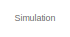
[diagram: root canvas - part 1/2, top left region]
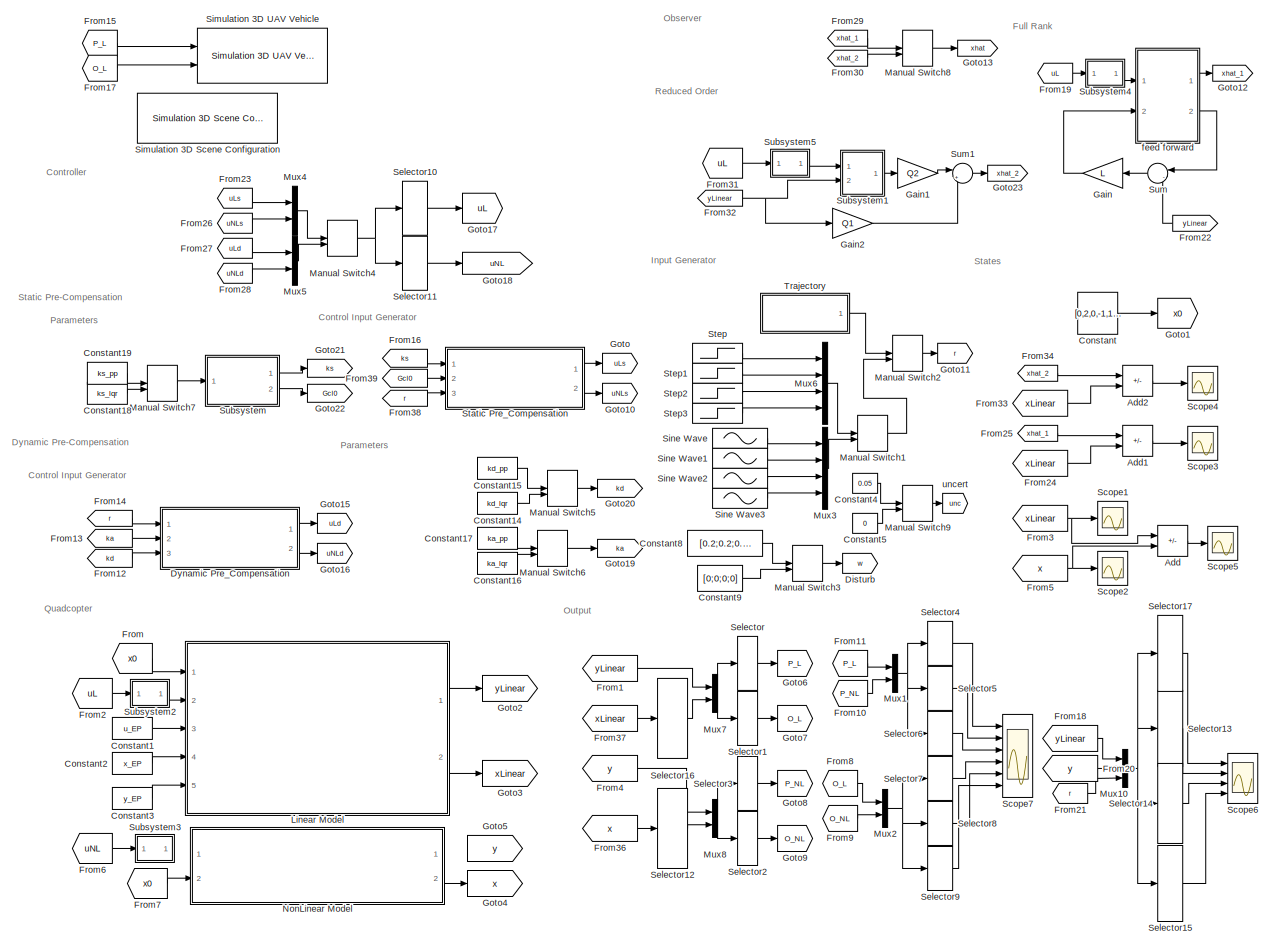
[diagram: root canvas - part 2/2, most of the canvas]
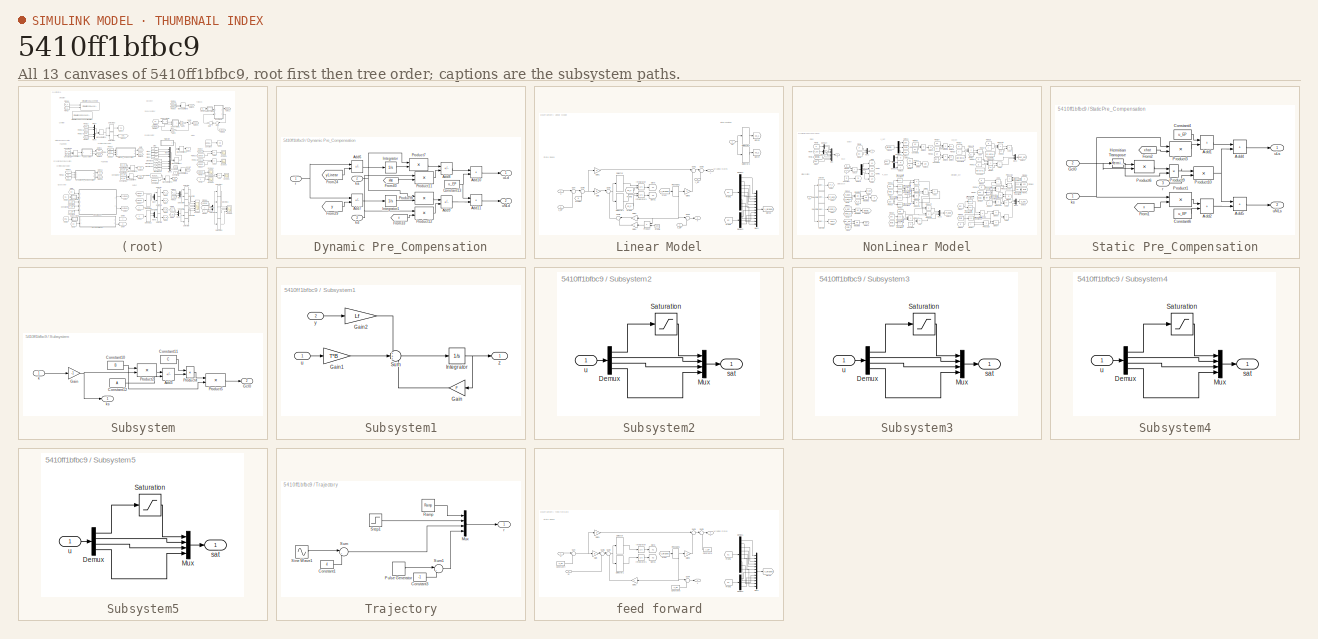
[diagram: thumbnail index - all 13 canvases of the model, root first then tree order]
MODEL slx_5410ff1bfbc9
KIND model
CONFIG AbsTol = auto
CONFIG EnableMultiTasking = off
CONFIG FixedStep = auto
CONFIG MaxStep = 0.001
CONFIG MinStep = auto
CONFIG RelTol = 1e-3
CONFIG SampleTimeConstraint = Unconstrained
CONFIG SolverName = VariableStepAuto
CONFIG StartTime = 0.0
CONFIG StopTime = 30
BLOCK [Sum] Add
  IconShape = rectangular
  Inputs = +-
  Ports = [2, 1]
BLOCK [Sum] Add1
  IconShape = rectangular
  Inputs = +-
  Ports = [2, 1]
BLOCK [Sum] Add2
  IconShape = rectangular
  Inputs = +-
  Ports = [2, 1]
BLOCK [Constant] Constant
  Value = [0,2,0,-1,1,1,0,0,0,0,0,0]
BLOCK [Constant] Constant1
  Value = u_EP
BLOCK [Constant] Constant14
  Value = kd_lqr
  VectorParams1D = off
BLOCK [Constant] Constant15
  Value = kd_pp
  VectorParams1D = off
BLOCK [Constant] Constant16
  Value = ka_lqr
  VectorParams1D = off
BLOCK [Constant] Constant17
  Value = ka_pp
  VectorParams1D = off
BLOCK [Constant] Constant18
  Value = ks_lqr
BLOCK [Constant] Constant19
  Value = ks_pp
BLOCK [Constant] Constant2
  Value = x_EP
BLOCK [Constant] Constant3
  Value = y_EP
BLOCK [Constant] Constant4
  Value = 0.05
BLOCK [Constant] Constant5
  Value = 0
BLOCK [Constant] Constant8
  Value = [0.2;0.2;0.2;0.2]
BLOCK [Constant] Constant9
  Value = [0;0;0;0]
BLOCK [Goto] Disturb
  GotoTag = w
  TagVisibility = global
BLOCK [SubSystem] Dynamic Pre_Compensation
  Ports = [3, 2]
  RequestExecContextInheritance = off
BLOCK [Sum] Dynamic Pre_Compensation/Add10
  IconShape = rectangular
  Ports = [2, 1]
BLOCK [Sum] Dynamic Pre_Compensation/Add11
  IconShape = rectangular
  Ports = [2, 1]
BLOCK [Sum] Dynamic Pre_Compensation/Add6
  IconShape = rectangular
  Inputs = +-
  Ports = [2, 1]
BLOCK [Sum] Dynamic Pre_Compensation/Add7
  IconShape = rectangular
  Inputs = +-
  Ports = [2, 1]
BLOCK [Sum] Dynamic Pre_Compensation/Add8
  IconShape = rectangular
  Inputs = --
  Ports = [2, 1]
BLOCK [Sum] Dynamic Pre_Compensation/Add9
  IconShape = rectangular
  Inputs = --
  Ports = [2, 1]
BLOCK [Constant] Dynamic Pre_Compensation/Constant13
  Value = u_EP
BLOCK [From] Dynamic Pre_Compensation/From24
  GotoTag = yLinear
  TagVisibility = global
BLOCK [From] Dynamic Pre_Compensation/From29
  GotoTag = y
  TagVisibility = global
BLOCK [From] Dynamic Pre_Compensation/From33
  GotoTag = x
  TagVisibility = global
BLOCK [From] Dynamic Pre_Compensation/From40
  GotoTag = xhat
  TagVisibility = global
BLOCK [Integrator] Dynamic Pre_Compensation/Integrator
  Ports = [1, 1]
BLOCK [Integrator] Dynamic Pre_Compensation/Integrator1
  Ports = [1, 1]
BLOCK [Product] Dynamic Pre_Compensation/Product11
  Multiplication = Matrix(*)
  Ports = [2, 1]
BLOCK [Product] Dynamic Pre_Compensation/Product12
  Multiplication = Matrix(*)
  Ports = [2, 1]
BLOCK [Product] Dynamic Pre_Compensation/Product7
  Multiplication = Matrix(*)
  Ports = [2, 1]
BLOCK [Product] Dynamic Pre_Compensation/Product8
  Multiplication = Matrix(*)
  Ports = [2, 1]
BLOCK [Inport] Dynamic Pre_Compensation/ka
  Port = 2
BLOCK [Inport] Dynamic Pre_Compensation/kd
  Port = 3
BLOCK [Inport] Dynamic Pre_Compensation/r
BLOCK [Outport] Dynamic Pre_Compensation/uLd
BLOCK [Outport] Dynamic Pre_Compensation/uNLd
  Port = 2
BLOCK [From] From
  GotoTag = x0
BLOCK [From] From1
  GotoTag = yLinear
  TagVisibility = global
BLOCK [From] From10
  GotoTag = P_NL
BLOCK [From] From11
  GotoTag = P_L
BLOCK [From] From12
  GotoTag = kd
BLOCK [From] From13
  GotoTag = ka
BLOCK [From] From14
  GotoTag = r
BLOCK [From] From15
  GotoTag = P_L
BLOCK [From] From16
  GotoTag = ks
BLOCK [From] From17
  GotoTag = O_L
BLOCK [From] From18
  GotoTag = yLinear
  TagVisibility = global
BLOCK [From] From19
  GotoTag = uL
BLOCK [From] From2
  GotoTag = uL
BLOCK [From] From20
  GotoTag = y
  TagVisibility = global
BLOCK [From] From21
  GotoTag = r
BLOCK [From] From22
  GotoTag = yLinear
  TagVisibility = global
BLOCK [From] From23
  GotoTag = uLs
BLOCK [From] From24
  GotoTag = xLinear
  TagVisibility = global
BLOCK [From] From25
  GotoTag = xhat_1
BLOCK [From] From26
  GotoTag = uNLs
BLOCK [From] From27
  GotoTag = uLd
BLOCK [From] From28
  GotoTag = uNLd
BLOCK [From] From29
  GotoTag = xhat_1
BLOCK [From] From3
  GotoTag = xLinear
  TagVisibility = global
BLOCK [From] From30
  GotoTag = xhat_2
BLOCK [From] From31
  GotoTag = uL
BLOCK [From] From32
  GotoTag = yLinear
  TagVisibility = global
BLOCK [From] From33
  GotoTag = xLinear
  TagVisibility = global
BLOCK [From] From34
  GotoTag = xhat_2
BLOCK [From] From36
  GotoTag = x
  TagVisibility = global
BLOCK [From] From37
  GotoTag = xLinear
  TagVisibility = global
BLOCK [From] From38
  GotoTag = r
BLOCK [From] From39
  GotoTag = Gcl0
  TagVisibility = global
BLOCK [From] From4
  GotoTag = y
  TagVisibility = global
BLOCK [From] From5
  GotoTag = x
  TagVisibility = global
BLOCK [From] From6
  GotoTag = uNL
BLOCK [From] From7
  GotoTag = x0
BLOCK [From] From8
  GotoTag = O_L
BLOCK [From] From9
  GotoTag = O_NL
BLOCK [Gain] Gain
  Gain = L
  Multiplication = Matrix(K*u)
BLOCK [Gain] Gain1
  Gain = Q2
  Multiplication = Matrix(K*u)
BLOCK [Gain] Gain2
  Gain = Q1
  Multiplication = Matrix(K*u)
BLOCK [Goto] Goto
  GotoTag = uLs
BLOCK [Goto] Goto1
  GotoTag = x0
BLOCK [Goto] Goto10
  GotoTag = uNLs
BLOCK [Goto] Goto11
  GotoTag = r
BLOCK [Goto] Goto12
  GotoTag = xhat_1
BLOCK [Goto] Goto13
  GotoTag = xhat
  TagVisibility = global
BLOCK [Goto] Goto15
  GotoTag = uLd
BLOCK [Goto] Goto16
  GotoTag = uNLd
BLOCK [Goto] Goto17
  GotoTag = uL
BLOCK [Goto] Goto18
  GotoTag = uNL
BLOCK [Goto] Goto19
  GotoTag = ka
BLOCK [Goto] Goto2
  GotoTag = yLinear
  TagVisibility = global
BLOCK [Goto] Goto20
  GotoTag = kd
BLOCK [Goto] Goto21
  GotoTag = ks
BLOCK [Goto] Goto22
  GotoTag = Gcl0
  TagVisibility = global
BLOCK [Goto] Goto23
  GotoTag = xhat_2
BLOCK [Goto] Goto3
  GotoTag = xLinear
  TagVisibility = global
BLOCK [Goto] Goto4
  GotoTag = x
  TagVisibility = global
BLOCK [Goto] Goto5
  GotoTag = y
  TagVisibility = global
BLOCK [Goto] Goto6
  GotoTag = P_L
BLOCK [Goto] Goto7
  GotoTag = O_L
BLOCK [Goto] Goto8
  GotoTag = P_NL
BLOCK [Goto] Goto9
  GotoTag = O_NL
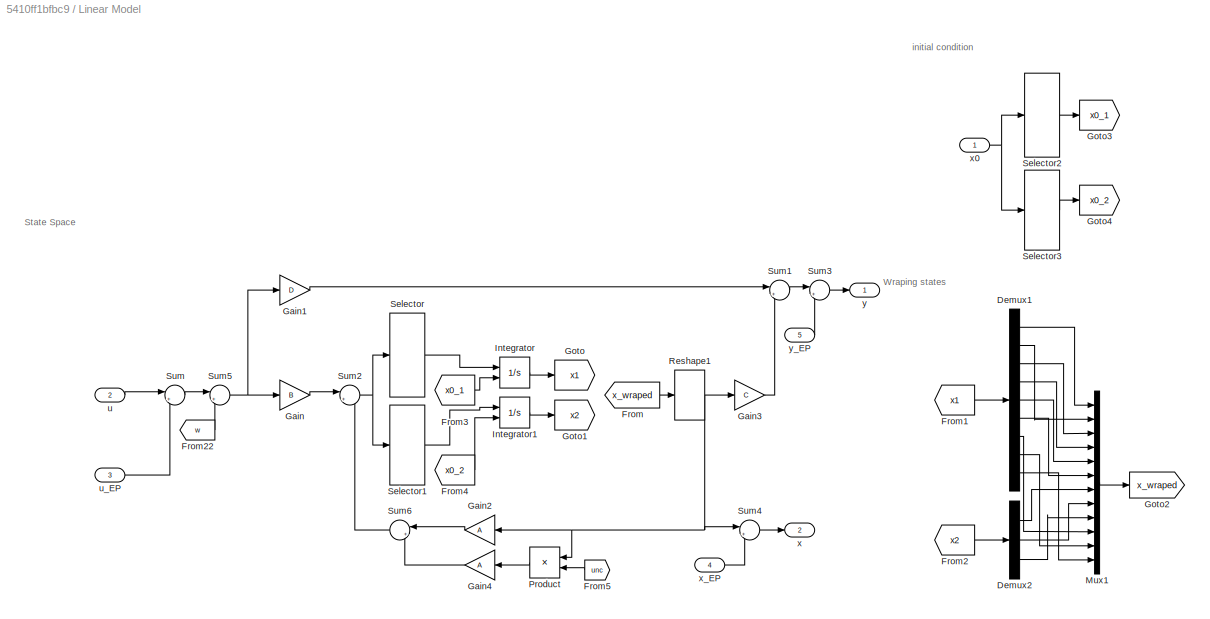
BLOCK [SubSystem] Linear Model
  Ports = [5, 2]
  RequestExecContextInheritance = off
BLOCK [Demux] Linear Model/Demux1
  Outputs = 9
  Ports = [1, 9]
BLOCK [Demux] Linear Model/Demux2
  Outputs = 3
  Ports = [1, 3]
BLOCK [From] Linear Model/From
  GotoTag = x_wraped
BLOCK [From] Linear Model/From1
  GotoTag = x1
BLOCK [From] Linear Model/From2
  GotoTag = x2
BLOCK [From] Linear Model/From22
  GotoTag = w
  TagVisibility = global
BLOCK [From] Linear Model/From3
  GotoTag = x0_1
BLOCK [From] Linear Model/From4
  GotoTag = x0_2
BLOCK [From] Linear Model/From5
  GotoTag = unc
  TagVisibility = global
BLOCK [Gain] Linear Model/Gain
  Gain = B
  Multiplication = Matrix(K*u)
BLOCK [Gain] Linear Model/Gain1
  Gain = D
  Multiplication = Matrix(K*u)
BLOCK [Gain] Linear Model/Gain2
  Gain = A
  Multiplication = Matrix(K*u)
BLOCK [Gain] Linear Model/Gain3
  Gain = C
  Multiplication = Matrix(K*u)
BLOCK [Gain] Linear Model/Gain4
  Gain = A
  Multiplication = Matrix(K*u)
BLOCK [Goto] Linear Model/Goto
  GotoTag = x1
BLOCK [Goto] Linear Model/Goto1
  GotoTag = x2
BLOCK [Goto] Linear Model/Goto2
  GotoTag = x_wraped
BLOCK [Goto] Linear Model/Goto3
  GotoTag = x0_1
BLOCK [Goto] Linear Model/Goto4
  GotoTag = x0_2
BLOCK [Integrator] Linear Model/Integrator
  InitialConditionSource = external
  Ports = [2, 1]
BLOCK [Integrator] Linear Model/Integrator1
  InitialConditionSource = external
  Ports = [2, 1]
  WrapState = on
BLOCK [Mux] Linear Model/Mux1
  DisplayOption = bar
  Inputs = 12
  Ports = [12, 1]
BLOCK [Product] Linear Model/Product
  Ports = [2, 1]
BLOCK [Reshape] Linear Model/Reshape1
  OutputDimensionality = Column vector (2-D)
  Ports = [1, 1]
BLOCK [Selector] Linear Model/Selector
  IndexOptions = Index vector (dialog)
  Indices = [1 2 3 4 5 6 10 11 12]
  InputPortWidth = 12
  OutputSizes = 1
  Ports = [1, 1]
BLOCK [Selector] Linear Model/Selector1
  IndexOptions = Index vector (dialog)
  Indices = [7 8 9]
  InputPortWidth = 12
  OutputSizes = 1
  Ports = [1, 1]
BLOCK [Selector] Linear Model/Selector2
  IndexOptions = Index vector (dialog)
  Indices = [1 2 3 4 5 6 10 11 12]
  InputPortWidth = 12
  OutputSizes = 1
  Ports = [1, 1]
BLOCK [Selector] Linear Model/Selector3
  IndexOptions = Index vector (dialog)
  Indices = [7 8 9]
  InputPortWidth = 12
  OutputSizes = 1
  Ports = [1, 1]
BLOCK [Sum] Linear Model/Sum
  Inputs = |+-
  Ports = [2, 1]
BLOCK [Sum] Linear Model/Sum1
  Inputs = |++
  Ports = [2, 1]
BLOCK [Sum] Linear Model/Sum2
  Inputs = |++
  Ports = [2, 1]
BLOCK [Sum] Linear Model/Sum3
  Inputs = |++
  Ports = [2, 1]
BLOCK [Sum] Linear Model/Sum4
  Inputs = |++
  Ports = [2, 1]
BLOCK [Sum] Linear Model/Sum5
  Inputs = |++
  Ports = [2, 1]
BLOCK [Sum] Linear Model/Sum6
  Inputs = |++
  Ports = [2, 1]
BLOCK [Inport] Linear Model/u
  Port = 2
BLOCK [Inport] Linear Model/u_EP
  Port = 3
BLOCK [Outport] Linear Model/x
  Port = 2
BLOCK [Inport] Linear Model/x0
BLOCK [Inport] Linear Model/x_EP
  Port = 4
BLOCK [Outport] Linear Model/y
BLOCK [Inport] Linear Model/y_EP
  Port = 5
BLOCK [ManualSwitch] Manual Switch1
  CurrentSetting = 0
BLOCK [ManualSwitch] Manual Switch2
BLOCK [ManualSwitch] Manual Switch3
  CurrentSetting = 0
BLOCK [ManualSwitch] Manual Switch4
  CurrentSetting = 0
BLOCK [ManualSwitch] Manual Switch5
  CurrentSetting = 0
BLOCK [ManualSwitch] Manual Switch6
  CurrentSetting = 0
BLOCK [ManualSwitch] Manual Switch7
  CurrentSetting = 0
BLOCK [ManualSwitch] Manual Switch8
BLOCK [ManualSwitch] Manual Switch9
  CurrentSetting = 0
BLOCK [Mux] Mux1
  DisplayOption = bar
  Inputs = 2
  Ports = [2, 1]
BLOCK [Mux] Mux10
  DisplayOption = bar
  Inputs = 3
  Ports = [3, 1]
BLOCK [Mux] Mux2
  DisplayOption = bar
  Inputs = 2
  Ports = [2, 1]
BLOCK [Mux] Mux3
  DisplayOption = bar
  Ports = [4, 1]
BLOCK [Mux] Mux4
  DisplayOption = bar
  Inputs = 2
  Ports = [2, 1]
BLOCK [Mux] Mux5
  DisplayOption = bar
  Inputs = 2
  Ports = [2, 1]
BLOCK [Mux] Mux6
  DisplayOption = bar
  Ports = [4, 1]
BLOCK [Mux] Mux7
  DisplayOption = bar
  Inputs = 2
  Ports = [2, 1]
BLOCK [Mux] Mux8
  DisplayOption = bar
  Inputs = 2
  Ports = [2, 1]
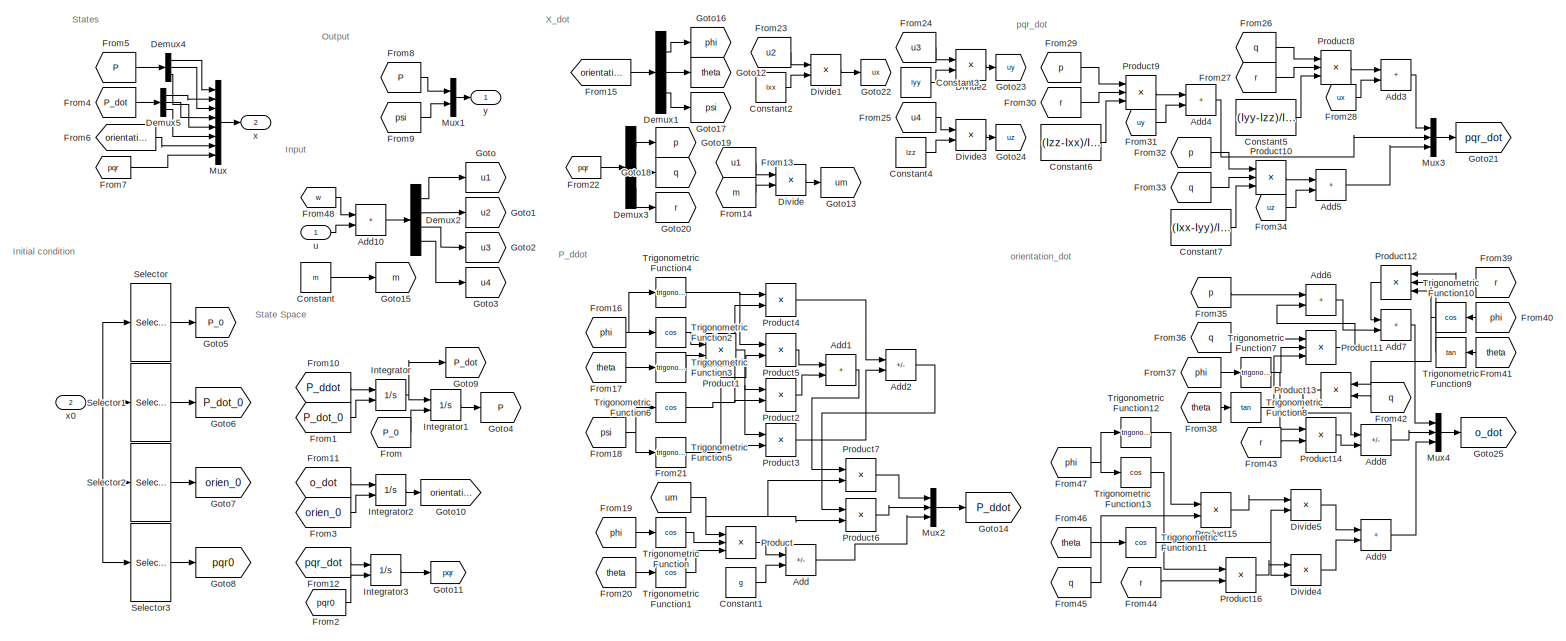
[diagram: NonLinear Model - part 1/1, most of the canvas]
BLOCK [SubSystem] NonLinear Model
  Ports = [2, 2]
  RequestExecContextInheritance = off
BLOCK [Sum] NonLinear Model/Add
  IconShape = rectangular
  Inputs = +-
  Ports = [2, 1]
BLOCK [Sum] NonLinear Model/Add1
  IconShape = rectangular
  Ports = [2, 1]
BLOCK [Sum] NonLinear Model/Add10
  IconShape = rectangular
  Ports = [2, 1]
BLOCK [Sum] NonLinear Model/Add2
  IconShape = rectangular
  Inputs = -+
  Ports = [2, 1]
BLOCK [Sum] NonLinear Model/Add3
  IconShape = rectangular
  Ports = [2, 1]
BLOCK [Sum] NonLinear Model/Add4
  IconShape = rectangular
  Ports = [2, 1]
BLOCK [Sum] NonLinear Model/Add5
  IconShape = rectangular
  Ports = [2, 1]
BLOCK [Sum] NonLinear Model/Add6
  IconShape = rectangular
  Ports = [2, 1]
BLOCK [Sum] NonLinear Model/Add7
  IconShape = rectangular
  Ports = [2, 1]
BLOCK [Sum] NonLinear Model/Add8
  IconShape = rectangular
  Inputs = +-
  Ports = [2, 1]
BLOCK [Sum] NonLinear Model/Add9
  IconShape = rectangular
  Ports = [2, 1]
BLOCK [Constant] NonLinear Model/Constant
  Value = m
BLOCK [Constant] NonLinear Model/Constant1
  Value = g
BLOCK [Constant] NonLinear Model/Constant2
  Value = Ixx
BLOCK [Constant] NonLinear Model/Constant3
  Value = Iyy
BLOCK [Constant] NonLinear Model/Constant4
  Value = Izz
BLOCK [Constant] NonLinear Model/Constant5
  Value = (Iyy-Izz)/Ixx
BLOCK [Constant] NonLinear Model/Constant6
  Value = (Izz-Ixx)/Iyy
BLOCK [Constant] NonLinear Model/Constant7
  Value = (Ixx-Iyy)/Izz
BLOCK [Demux] NonLinear Model/Demux1
  Outputs = 3
  Ports = [1, 3]
BLOCK [Demux] NonLinear Model/Demux2
  Ports = [1, 4]
BLOCK [Demux] NonLinear Model/Demux3
  Outputs = 3
  Ports = [1, 3]
BLOCK [Demux] NonLinear Model/Demux4
  Outputs = 3
  Ports = [1, 3]
BLOCK [Demux] NonLinear Model/Demux5
  NameLocation = left
  Outputs = 3
  Ports = [1, 3]
BLOCK [Product] NonLinear Model/Divide
  Inputs = */
  Ports = [2, 1]
BLOCK [Product] NonLinear Model/Divide1
  Inputs = */
  Ports = [2, 1]
BLOCK [Product] NonLinear Model/Divide2
  Inputs = */
  Ports = [2, 1]
BLOCK [Product] NonLinear Model/Divide3
  Inputs = */
  Ports = [2, 1]
BLOCK [Product] NonLinear Model/Divide4
  Inputs = */
  NameLocation = top
  Ports = [2, 1]
BLOCK [Product] NonLinear Model/Divide5
  Inputs = */
  Ports = [2, 1]
BLOCK [From] NonLinear Model/From
  GotoTag = P_0
BLOCK [From] NonLinear Model/From1
  GotoTag = P_dot_0
BLOCK [From] NonLinear Model/From10
  GotoTag = P_ddot
BLOCK [From] NonLinear Model/From11
  GotoTag = o_dot
BLOCK [From] NonLinear Model/From12
  GotoTag = pqr_dot
BLOCK [From] NonLinear Model/From13
  GotoTag = u1
BLOCK [From] NonLinear Model/From14
  GotoTag = m
BLOCK [From] NonLinear Model/From15
  GotoTag = orientation
BLOCK [From] NonLinear Model/From16
  GotoTag = phi
BLOCK [From] NonLinear Model/From17
  GotoTag = theta
BLOCK [From] NonLinear Model/From18
  GotoTag = psi
BLOCK [From] NonLinear Model/From19
  GotoTag = phi
BLOCK [From] NonLinear Model/From2
  GotoTag = pqr0
BLOCK [From] NonLinear Model/From20
  GotoTag = theta
BLOCK [From] NonLinear Model/From21
  GotoTag = um
BLOCK [From] NonLinear Model/From22
  GotoTag = pqr
BLOCK [From] NonLinear Model/From23
  GotoTag = u2
BLOCK [From] NonLinear Model/From24
  GotoTag = u3
BLOCK [From] NonLinear Model/From25
  GotoTag = u4
BLOCK [From] NonLinear Model/From26
  GotoTag = q
BLOCK [From] NonLinear Model/From27
  GotoTag = r
BLOCK [From] NonLinear Model/From28
  GotoTag = ux
BLOCK [From] NonLinear Model/From29
  GotoTag = p
BLOCK [From] NonLinear Model/From3
  GotoTag = orien_0
BLOCK [From] NonLinear Model/From30
  GotoTag = r
BLOCK [From] NonLinear Model/From31
  GotoTag = uy
BLOCK [From] NonLinear Model/From32
  GotoTag = p
BLOCK [From] NonLinear Model/From33
  GotoTag = q
BLOCK [From] NonLinear Model/From34
  GotoTag = uz
BLOCK [From] NonLinear Model/From35
  GotoTag = p
BLOCK [From] NonLinear Model/From36
  GotoTag = q
BLOCK [From] NonLinear Model/From37
  GotoTag = phi
BLOCK [From] NonLinear Model/From38
  GotoTag = theta
BLOCK [From] NonLinear Model/From39
  GotoTag = r
BLOCK [From] NonLinear Model/From4
  GotoTag = P_dot
BLOCK [From] NonLinear Model/From40
  GotoTag = phi
BLOCK [From] NonLinear Model/From41
  GotoTag = theta
BLOCK [From] NonLinear Model/From42
  GotoTag = q
BLOCK [From] NonLinear Model/From43
  GotoTag = r
BLOCK [From] NonLinear Model/From44
  GotoTag = r
BLOCK [From] NonLinear Model/From45
  GotoTag = q
BLOCK [From] NonLinear Model/From46
  GotoTag = theta
BLOCK [From] NonLinear Model/From47
  GotoTag = phi
BLOCK [From] NonLinear Model/From48
  GotoTag = w
  TagVisibility = global
BLOCK [From] NonLinear Model/From5
  GotoTag = P
BLOCK [From] NonLinear Model/From6
  GotoTag = orientation
BLOCK [From] NonLinear Model/From7
  GotoTag = pqr
BLOCK [From] NonLinear Model/From8
  GotoTag = P
BLOCK [From] NonLinear Model/From9
  GotoTag = psi
BLOCK [Goto] NonLinear Model/Goto
  GotoTag = u1
BLOCK [Goto] NonLinear Model/Goto1
  GotoTag = u2
BLOCK [Goto] NonLinear Model/Goto10
  GotoTag = orientation
BLOCK [Goto] NonLinear Model/Goto11
  GotoTag = pqr
BLOCK [Goto] NonLinear Model/Goto12
  GotoTag = theta
BLOCK [Goto] NonLinear Model/Goto13
  GotoTag = um
BLOCK [Goto] NonLinear Model/Goto14
  GotoTag = P_ddot
BLOCK [Goto] NonLinear Model/Goto15
  GotoTag = m
BLOCK [Goto] NonLinear Model/Goto16
  GotoTag = phi
BLOCK [Goto] NonLinear Model/Goto17
  GotoTag = psi
BLOCK [Goto] NonLinear Model/Goto18
  GotoTag = q
BLOCK [Goto] NonLinear Model/Goto19
  GotoTag = p
BLOCK [Goto] NonLinear Model/Goto2
  GotoTag = u3
BLOCK [Goto] NonLinear Model/Goto20
  GotoTag = r
BLOCK [Goto] NonLinear Model/Goto21
  GotoTag = pqr_dot
BLOCK [Goto] NonLinear Model/Goto22
  GotoTag = ux
BLOCK [Goto] NonLinear Model/Goto23
  GotoTag = uy
BLOCK [Goto] NonLinear Model/Goto24
  GotoTag = uz
BLOCK [Goto] NonLinear Model/Goto25
  GotoTag = o_dot
BLOCK [Goto] NonLinear Model/Goto3
  GotoTag = u4
BLOCK [Goto] NonLinear Model/Goto4
  GotoTag = P
BLOCK [Goto] NonLinear Model/Goto5
  GotoTag = P_0
BLOCK [Goto] NonLinear Model/Goto6
  GotoTag = P_dot_0
BLOCK [Goto] NonLinear Model/Goto7
  GotoTag = orien_0
BLOCK [Goto] NonLinear Model/Goto8
  GotoTag = pqr0
BLOCK [Goto] NonLinear Model/Goto9
  GotoTag = P_dot
BLOCK [Integrator] NonLinear Model/Integrator
  InitialConditionSource = external
  Ports = [2, 1]
BLOCK [Integrator] NonLinear Model/Integrator1
  InitialConditionSource = external
  Ports = [2, 1]
BLOCK [Integrator] NonLinear Model/Integrator2
  InitialConditionSource = external
  Ports = [2, 1]
  WrapState = on
BLOCK [Integrator] NonLinear Model/Integrator3
  InitialConditionSource = external
  Ports = [2, 1]
BLOCK [Mux] NonLinear Model/Mux
  DisplayOption = bar
  Inputs = 8
  Ports = [8, 1]
BLOCK [Mux] NonLinear Model/Mux1
  DisplayOption = bar
  Inputs = 2
  Ports = [2, 1]
BLOCK [Mux] NonLinear Model/Mux2
  DisplayOption = bar
  Inputs = 3
  Ports = [3, 1]
BLOCK [Mux] NonLinear Model/Mux3
  DisplayOption = bar
  Inputs = 3
  Ports = [3, 1]
BLOCK [Mux] NonLinear Model/Mux4
  DisplayOption = bar
  Inputs = 3
  Ports = [3, 1]
BLOCK [Product] NonLinear Model/Product
  Inputs = 3
  Ports = [3, 1]
BLOCK [Product] NonLinear Model/Product1
  Ports = [2, 1]
BLOCK [Product] NonLinear Model/Product10
  Inputs = 3
  Ports = [3, 1]
BLOCK [Product] NonLinear Model/Product11
  Inputs = 3
  Ports = [3, 1]
BLOCK [Product] NonLinear Model/Product12
  Inputs = 3
  Ports = [3, 1]
BLOCK [Product] NonLinear Model/Product13
  Ports = [2, 1]
BLOCK [Product] NonLinear Model/Product14
  Ports = [2, 1]
BLOCK [Product] NonLinear Model/Product15
  Ports = [2, 1]
BLOCK [Product] NonLinear Model/Product16
  Ports = [2, 1]
BLOCK [Product] NonLinear Model/Product2
  Ports = [2, 1]
BLOCK [Product] NonLinear Model/Product3
  Ports = [2, 1]
BLOCK [Product] NonLinear Model/Product4
  Ports = [2, 1]
BLOCK [Product] NonLinear Model/Product5
  Ports = [2, 1]
BLOCK [Product] NonLinear Model/Product6
  Ports = [2, 1]
BLOCK [Product] NonLinear Model/Product7
  Ports = [2, 1]
BLOCK [Product] NonLinear Model/Product8
  Inputs = 3
  Ports = [3, 1]
BLOCK [Product] NonLinear Model/Product9
  Inputs = 3
  Ports = [3, 1]
BLOCK [Selector] NonLinear Model/Selector
  IndexOptions = Index vector (dialog)
  Indices = [1 3 5]
  InputPortWidth = 12
  OutputSizes = 1
  Ports = [1, 1]
BLOCK [Selector] NonLinear Model/Selector1
  IndexOptions = Index vector (dialog)
  Indices = [2 4 6]
  InputPortWidth = 12
  OutputSizes = 1
  Ports = [1, 1]
BLOCK [Selector] NonLinear Model/Selector2
  IndexOptions = Index vector (dialog)
  Indices = [7 8 9]
  InputPortWidth = 12
  OutputSizes = 1
  Ports = [1, 1]
BLOCK [Selector] NonLinear Model/Selector3
  IndexOptions = Index vector (dialog)
  Indices = [10 11 12]
  InputPortWidth = 12
  OutputSizes = 1
  Ports = [1, 1]
BLOCK [Trigonometry] NonLinear Model/Trigonometric Function
  Operator = cos
  Ports = [1, 1]
BLOCK [Trigonometry] NonLinear Model/Trigonometric Function1
  Operator = cos
  Ports = [1, 1]
BLOCK [Trigonometry] NonLinear Model/Trigonometric Function10
  Operator = cos
  Ports = [1, 1]
BLOCK [Trigonometry] NonLinear Model/Trigonometric Function11
  Operator = cos
  Ports = [1, 1]
BLOCK [Trigonometry] NonLinear Model/Trigonometric Function12
  Ports = [1, 1]
BLOCK [Trigonometry] NonLinear Model/Trigonometric Function13
  Operator = cos
  Ports = [1, 1]
BLOCK [Trigonometry] NonLinear Model/Trigonometric Function2
  Operator = cos
  Ports = [1, 1]
BLOCK [Trigonometry] NonLinear Model/Trigonometric Function3
  Ports = [1, 1]
BLOCK [Trigonometry] NonLinear Model/Trigonometric Function4
  Ports = [1, 1]
BLOCK [Trigonometry] NonLinear Model/Trigonometric Function5
  Ports = [1, 1]
BLOCK [Trigonometry] NonLinear Model/Trigonometric Function6
  Operator = cos
  Ports = [1, 1]
BLOCK [Trigonometry] NonLinear Model/Trigonometric Function7
  Ports = [1, 1]
BLOCK [Trigonometry] NonLinear Model/Trigonometric Function8
  Operator = tan
  Ports = [1, 1]
BLOCK [Trigonometry] NonLinear Model/Trigonometric Function9
  Operator = tan
  Ports = [1, 1]
BLOCK [Inport] NonLinear Model/u
BLOCK [Outport] NonLinear Model/x
  Port = 2
BLOCK [Inport] NonLinear Model/x0
  Port = 2
BLOCK [Outport] NonLinear Model/y
BLOCK [Scope] Scope1
  Floating = off
  NumInputPorts = 1
  Ports = [1]
  ScopeSpecificationString = Simulink.scopes.TimeScopeBlockCfg('CurrentConfiguration', extmgr.ConfigurationSet(extmgr.Configuration('Core','General UI',true,'FigureColor',[1 1 1]),extmgr.Configuration('Core','Source UI',true),extmgr.Configuration('Sources','WiredSimulink',true,'DataLoggingVariableName','ScopeData1'),extmgr.Configuration('Visuals','Time Domain',true,'SerializedDisplays',{struct('MinYLimReal','-160.77868','MaxY...<+2943ch>
BLOCK [Scope] Scope2
  Floating = off
  NumInputPorts = 1
  Ports = [1]
  ScopeSpecificationString = Simulink.scopes.TimeScopeBlockCfg('CurrentConfiguration', extmgr.ConfigurationSet(extmgr.Configuration('Core','General UI',true,'FigureColor',[1 1 1]),extmgr.Configuration('Core','Source UI',true),extmgr.Configuration('Sources','WiredSimulink',true,'DataLoggingVariableName','ScopeData2'),extmgr.Configuration('Visuals','Time Domain',true,'SerializedDisplays',{struct('MinYLimReal','-6.16886','MaxYLi...<+2928ch>
BLOCK [Scope] Scope3
  Floating = off
  NumInputPorts = 1
  Ports = [1]
  ScopeSpecificationString = Simulink.scopes.TimeScopeBlockCfg('CurrentConfiguration', extmgr.ConfigurationSet(extmgr.Configuration('Core','General UI',true,'FigureColor',[1 1 1],'DisplayFullSourceName',true),extmgr.Configuration('Core','Source UI',true),extmgr.Configuration('Sources','WiredSimulink',true,'DataLoggingVariableName','ScopeData1'),extmgr.Configuration('Visuals','Time Domain',true,'SerializedDisplays',{struct('Mi...<+3012ch>
BLOCK [Scope] Scope4
  Floating = off
  NumInputPorts = 1
  Ports = [1]
  ScopeSpecificationString = Simulink.scopes.TimeScopeBlockCfg('CurrentConfiguration', extmgr.ConfigurationSet(extmgr.Configuration('Core','General UI',true,'FigureColor',[1 1 1],'DisplayFullSourceName',true),extmgr.Configuration('Core','Source UI',true),extmgr.Configuration('Sources','WiredSimulink',true,'DataLoggingVariableName','ScopeData2'),extmgr.Configuration('Visuals','Time Domain',true,'SerializedDisplays',{struct('Mi...<+3005ch>
BLOCK [Scope] Scope5
  Floating = off
  NumInputPorts = 1
  Ports = [1]
  ScopeSpecificationString = Simulink.scopes.TimeScopeBlockCfg('CurrentConfiguration', extmgr.ConfigurationSet(extmgr.Configuration('Core','General UI',true,'FigureColor',[1 1 1]),extmgr.Configuration('Core','Source UI',true),extmgr.Configuration('Sources','WiredSimulink',true,'DataLoggingVariableName','ScopeData2'),extmgr.Configuration('Visuals','Time Domain',true,'SerializedDisplays',{struct('MinYLimReal','-1183.27927','Max...<+2959ch>
BLOCK [Scope] Scope6
  Floating = off
  NumInputPorts = 4
  Ports = [4]
  ScopeSpecificationString = Simulink.scopes.TimeScopeBlockCfg('CurrentConfiguration', extmgr.ConfigurationSet(extmgr.Configuration('Core','General UI',true,'FigureColor',[1 1 1]),extmgr.Configuration('Core','Source UI',true),extmgr.Configuration('Sources','WiredSimulink',true,'DataLoggingVariableName','ScopeData1'),extmgr.Configuration('Visuals','Time Domain',true,'SerializedDisplays',{struct('MinYLimReal','-14.994','MaxYLim...<+4815ch>
BLOCK [Scope] Scope7
  Floating = off
  NumInputPorts = 6
  Ports = [6]
  ScopeSpecificationString = Simulink.scopes.TimeScopeBlockCfg('CurrentConfiguration', extmgr.ConfigurationSet(extmgr.Configuration('Core','General UI',true,'FigureColor',[1 1 1]),extmgr.Configuration('Core','Source UI',true),extmgr.Configuration('Sources','WiredSimulink',true,'DataLoggingVariableName','ScopeData5'),extmgr.Configuration('Visuals','Time Domain',true,'SerializedDisplays',{struct('MinYLimReal','-13.08424','MaxYL...<+6391ch>
BLOCK [Selector] Selector
  IndexOptions = Index vector (dialog)
  Indices = [1 2 3]
  InputPortWidth = 6
  OutputSizes = 1
  Ports = [1, 1]
BLOCK [Selector] Selector1
  IndexOptions = Index vector (dialog)
  Indices = [4 5 6]
  InputPortWidth = 6
  OutputSizes = 1
  Ports = [1, 1]
BLOCK [Selector] Selector10
  IndexOptions = Index vector (dialog)
  Indices = [1:4]
  InputPortWidth = 8
  OutputSizes = 1
  Ports = [1, 1]
BLOCK [Selector] Selector11
  IndexOptions = Index vector (dialog)
  Indices = [5:8]
  InputPortWidth = 8
  OutputSizes = 1
  Ports = [1, 1]
BLOCK [Selector] Selector12
  IndexOptions = Index vector (dialog)
  Indices = [7 8]
  InputPortWidth = 12
  OutputSizes = 1
  Ports = [1, 1]
BLOCK [Selector] Selector13
  IndexOptions = Index vector (dialog)
  Indices = [2,6,10]
  InputPortWidth = 12
  OutputSizes = 1
  Ports = [1, 1]
BLOCK [Selector] Selector14
  IndexOptions = Index vector (dialog)
  Indices = [3,7,11]
  InputPortWidth = 12
  OutputSizes = 1
  Ports = [1, 1]
BLOCK [Selector] Selector15
  IndexOptions = Index vector (dialog)
  Indices = [4,8,12]
  InputPortWidth = 12
  OutputSizes = 1
  Ports = [1, 1]
BLOCK [Selector] Selector16
  IndexOptions = Index vector (dialog)
  Indices = [7 8]
  InputPortWidth = 12
  OutputSizes = 1
  Ports = [1, 1]
BLOCK [Selector] Selector17
  IndexOptions = Index vector (dialog)
  Indices = [1,5,9]
  InputPortWidth = 12
  OutputSizes = 1
  Ports = [1, 1]
BLOCK [Selector] Selector2
  IndexOptions = Index vector (dialog)
  Indices = [4 5 6]
  InputPortWidth = 6
  OutputSizes = 1
  Ports = [1, 1]
BLOCK [Selector] Selector3
  IndexOptions = Index vector (dialog)
  Indices = [1 2 3]
  InputPortWidth = 6
  OutputSizes = 1
  Ports = [1, 1]
BLOCK [Selector] Selector4
  IndexOptions = Index vector (dialog)
  Indices = [1 4]
  InputPortWidth = 6
  OutputSizes = 1
  Ports = [1, 1]
BLOCK [Selector] Selector5
  IndexOptions = Index vector (dialog)
  Indices = [2 5]
  InputPortWidth = 6
  OutputSizes = 1
  Ports = [1, 1]
BLOCK [Selector] Selector6
  IndexOptions = Index vector (dialog)
  Indices = [3 6]
  InputPortWidth = 6
  OutputSizes = 1
  Ports = [1, 1]
BLOCK [Selector] Selector7
  IndexOptions = Index vector (dialog)
  Indices = [1 4]
  InputPortWidth = 6
  OutputSizes = 1
  Ports = [1, 1]
BLOCK [Selector] Selector8
  IndexOptions = Index vector (dialog)
  Indices = [2 5]
  InputPortWidth = 6
  OutputSizes = 1
  Ports = [1, 1]
BLOCK [Selector] Selector9
  IndexOptions = Index vector (dialog)
  Indices = [3 6]
  InputPortWidth = 6
  OutputSizes = 1
  Ports = [1, 1]
BLOCK [Reference] Simulation 3D Scene Configuration  REF=sim3dlib/Simulation 3D Scene Configuration
  Ports = []
  Priority = 0
  SourceBlock = sim3dlib/Simulation 3D Scene Configuration
  SourceProductBaseCode = AE,DR,UV,VE
  SourceType = Simulation 3D Scene Configuration
BLOCK [Reference] Simulation 3D UAV Vehicle  REF=uavsim3dlib/Simulation 3D UAV Vehicle
  Ports = [2]
  Priority = -1
  SourceBlock = uavsim3dlib/Simulation 3D UAV Vehicle
  SourceProductBaseCode = UV
  SourceType = Simulation 3D UAV Vehicle
BLOCK [Sin] Sine Wave
  Amplitude = 0.5
  Frequency = pi/8
  Phase = pi/4
  Ports = [0, 1]
  SampleTime = 0
BLOCK [Sin] Sine Wave1
  Amplitude = 0.4
  Frequency = pi/8
  Phase = pi/8
  Ports = [0, 1]
  SampleTime = 0
BLOCK [Sin] Sine Wave2
  Amplitude = 1.5
  Frequency = pi/8
  Ports = [0, 1]
  SampleTime = 0
BLOCK [Sin] Sine Wave3
  Amplitude = 0.02
  Frequency = pi/16
  Phase = pi/8
  Ports = [0, 1]
  SampleTime = 0
BLOCK [SubSystem] Static Pre_Compensation
  Ports = [3, 2]
  RequestExecContextInheritance = off
BLOCK [Sum] Static Pre_Compensation/Add1
  IconShape = rectangular
  Ports = [2, 1]
BLOCK [Sum] Static Pre_Compensation/Add2
  IconShape = rectangular
  Ports = [2, 1]
BLOCK [Sum] Static Pre_Compensation/Add4
  IconShape = rectangular
  Ports = [2, 1]
BLOCK [Sum] Static Pre_Compensation/Add5
  IconShape = rectangular
  Ports = [2, 1]
BLOCK [Constant] Static Pre_Compensation/Constant4
  Value = u_EP
BLOCK [Constant] Static Pre_Compensation/Constant6
  Value = u_EP
BLOCK [From] Static Pre_Compensation/From1
  GotoTag = x
  TagVisibility = global
BLOCK [From] Static Pre_Compensation/From2
  GotoTag = xhat
  TagVisibility = global
BLOCK [Inport] Static Pre_Compensation/Gcl0
  Port = 2
BLOCK [Reference] Static Pre_Compensation/Hermitian Transpose  REF=matrix_library/Hermitian Transpose
  Ports = [1, 1]
  SourceBlock = matrix_library/Hermitian Transpose
  SourceProductBaseCode = SL
  SourceType = HermitianTranspose
BLOCK [Product] Static Pre_Compensation/Product1
  Multiplication = Matrix(*)
  Ports = [2, 1]
BLOCK [Product] Static Pre_Compensation/Product10
  Multiplication = Matrix(*)
  Ports = [2, 1]
BLOCK [Product] Static Pre_Compensation/Product3
  Multiplication = Matrix(*)
  Ports = [2, 1]
BLOCK [Product] Static Pre_Compensation/Product6
  Multiplication = Matrix(*)
  Ports = [2, 1]
BLOCK [Product] Static Pre_Compensation/Product9
  Inputs = /*
  Multiplication = Matrix(*)
  Ports = [2, 1]
BLOCK [Inport] Static Pre_Compensation/ks
BLOCK [Inport] Static Pre_Compensation/r
  Port = 3
BLOCK [Outport] Static Pre_Compensation/uLs
BLOCK [Outport] Static Pre_Compensation/uNLs
  Port = 2
BLOCK [Step] Step
  SampleTime = 0
  Time = 0
BLOCK [Step] Step1
  After = 3
  SampleTime = 0
  Time = 0
BLOCK [Step] Step2
  After = 4
  SampleTime = 0
  Time = 0
BLOCK [Step] Step3
  After = -pi/32
  SampleTime = 0
  Time = 0
BLOCK [SubSystem] Subsystem
  Ports = [1, 2]
  RequestExecContextInheritance = off
BLOCK [Sum] Subsystem/Add3
  IconShape = rectangular
  Inputs = --
  Ports = [2, 1]
BLOCK [Constant] Subsystem/Constant10
  Value = B
  VectorParams1D = off
BLOCK [Constant] Subsystem/Constant11
  Value = C
  VectorParams1D = off
BLOCK [Constant] Subsystem/Constant12
  Value = A
  VectorParams1D = off
BLOCK [Gain] Subsystem/Gain
  Gain = -1
BLOCK [Outport] Subsystem/Gcl0
  Port = 2
BLOCK [Product] Subsystem/Product2
  Multiplication = Matrix(*)
  Ports = [2, 1]
BLOCK [Product] Subsystem/Product4
  Inputs = */
  Multiplication = Matrix(*)
  Ports = [2, 1]
BLOCK [Product] Subsystem/Product5
  Multiplication = Matrix(*)
  Ports = [2, 1]
BLOCK [Inport] Subsystem/k
BLOCK [Outport] Subsystem/ks
BLOCK [SubSystem] Subsystem1
  Ports = [2, 1]
  RequestExecContextInheritance = off
BLOCK [Gain] Subsystem1/Gain
  Gain = F
  Multiplication = Matrix(K*u)
BLOCK [Gain] Subsystem1/Gain1
  Gain = T*B
  Multiplication = Matrix(K*u)
BLOCK [Gain] Subsystem1/Gain2
  Gain = Lf
  Multiplication = Matrix(K*u)
BLOCK [Integrator] Subsystem1/Integrator
  Ports = [1, 1]
BLOCK [Sum] Subsystem1/Sum
  Inputs = +++
  Ports = [3, 1]
BLOCK [Inport] Subsystem1/u
BLOCK [Inport] Subsystem1/y
  Port = 2
BLOCK [Outport] Subsystem1/z
BLOCK [SubSystem] Subsystem2
  Ports = [1, 1]
  RequestExecContextInheritance = off
BLOCK [Demux] Subsystem2/Demux
  Ports = [1, 4]
BLOCK [Mux] Subsystem2/Mux
  DisplayOption = bar
  Ports = [4, 1]
BLOCK [Saturate] Subsystem2/Saturation
  LowerLimit = 0
  UpperLimit = 35
BLOCK [Outport] Subsystem2/sat
BLOCK [Inport] Subsystem2/u
BLOCK [SubSystem] Subsystem3
  Ports = [1, 1]
  RequestExecContextInheritance = off
BLOCK [Demux] Subsystem3/Demux
  Ports = [1, 4]
BLOCK [Mux] Subsystem3/Mux
  DisplayOption = bar
  Ports = [4, 1]
BLOCK [Saturate] Subsystem3/Saturation
  LowerLimit = 0
  UpperLimit = 25
BLOCK [Outport] Subsystem3/sat
BLOCK [Inport] Subsystem3/u
BLOCK [SubSystem] Subsystem4
  Ports = [1, 1]
  RequestExecContextInheritance = off
BLOCK [Demux] Subsystem4/Demux
  Ports = [1, 4]
BLOCK [Mux] Subsystem4/Mux
  DisplayOption = bar
  Ports = [4, 1]
BLOCK [Saturate] Subsystem4/Saturation
  LowerLimit = 0
  UpperLimit = 35
BLOCK [Outport] Subsystem4/sat
BLOCK [Inport] Subsystem4/u
BLOCK [SubSystem] Subsystem5
  Ports = [1, 1]
  RequestExecContextInheritance = off
BLOCK [Demux] Subsystem5/Demux
  Ports = [1, 4]
BLOCK [Mux] Subsystem5/Mux
  DisplayOption = bar
  Ports = [4, 1]
BLOCK [Saturate] Subsystem5/Saturation
  LowerLimit = 0
  UpperLimit = 25
BLOCK [Outport] Subsystem5/sat
BLOCK [Inport] Subsystem5/u
BLOCK [Sum] Sum
  Inputs = |-+
  Ports = [2, 1]
BLOCK [Sum] Sum1
  Inputs = |++
  Ports = [2, 1]
BLOCK [SubSystem] Trajectory
  Ports = [0, 1]
  RequestExecContextInheritance = off
BLOCK [Constant] Trajectory/Constant1
  Value = 4
BLOCK [Constant] Trajectory/Constant3
  Value = -1
BLOCK [Mux] Trajectory/Mux
  DisplayOption = bar
  Ports = [4, 1]
BLOCK [DiscretePulseGenerator] Trajectory/Pulse Generator
  Amplitude = 2
  Period = 8
  Ports = [0, 1]
  PulseType = Time based
  PulseWidth = 50
BLOCK [Reference] Trajectory/Ramp  REF=simulink/Sources/Ramp
  Ports = [0, 1]
  SourceBlock = simulink/Sources/Ramp
  SourceProductBaseCode = SL
  SourceType = Ramp
BLOCK [Sin] Trajectory/Sine Wave1
  Amplitude = 2
  Frequency = pi/4
  Ports = [0, 1]
  SampleTime = 0
BLOCK [Step] Trajectory/Step1
  SampleTime = 0
  Time = 4
BLOCK [Sum] Trajectory/Sum
  Inputs = |++
  Ports = [2, 1]
BLOCK [Sum] Trajectory/Sum1
  Inputs = |++
  Ports = [2, 1]
BLOCK [Outport] Trajectory/r
BLOCK [SubSystem] feed forward
  Ports = [2, 2]
  RequestExecContextInheritance = off
BLOCK [Constant] feed forward/Constant4
  Value = u_EP
BLOCK [Constant] feed forward/Constant5
  Value = x_EP
BLOCK [Constant] feed forward/Constant6
  Value = y_EP
BLOCK [Demux] feed forward/Demux1
  Outputs = 9
  Ports = [1, 9]
BLOCK [Demux] feed forward/Demux2
  Outputs = 3
  Ports = [1, 3]
BLOCK [From] feed forward/From
  GotoTag = x_wraped
BLOCK [From] feed forward/From1
  GotoTag = x1
BLOCK [From] feed forward/From2
  GotoTag = x2
BLOCK [Gain] feed forward/Gain
  Gain = B
  Multiplication = Matrix(K*u)
BLOCK [Gain] feed forward/Gain1
  Gain = D
  Multiplication = Matrix(K*u)
BLOCK [Gain] feed forward/Gain2
  Gain = A
  Multiplication = Matrix(K*u)
BLOCK [Gain] feed forward/Gain3
  Gain = C
  Multiplication = Matrix(K*u)
BLOCK [Goto] feed forward/Goto
  GotoTag = x1
BLOCK [Goto] feed forward/Goto1
  GotoTag = x2
BLOCK [Goto] feed forward/Goto2
  GotoTag = x_wraped
BLOCK [Integrator] feed forward/Integrator
  Ports = [1, 1]
BLOCK [Integrator] feed forward/Integrator1
  Ports = [1, 1]
  WrapState = on
BLOCK [Mux] feed forward/Mux1
  DisplayOption = bar
  Inputs = 12
  Ports = [12, 1]
BLOCK [Reshape] feed forward/Reshape1
  OutputDimensionality = Column vector (2-D)
  Ports = [1, 1]
BLOCK [Selector] feed forward/Selector
  IndexOptions = Index vector (dialog)
  Indices = [1 2 3 4 5 6 10 11 12]
  InputPortWidth = 12
  OutputSizes = 1
  Ports = [1, 1]
BLOCK [Selector] feed forward/Selector1
  IndexOptions = Index vector (dialog)
  Indices = [7 8 9]
  InputPortWidth = 12
  OutputSizes = 1
  Ports = [1, 1]
BLOCK [Sum] feed forward/Sum
  Inputs = |+-
  Ports = [2, 1]
BLOCK [Sum] feed forward/Sum1
  Inputs = |++
  Ports = [2, 1]
BLOCK [Sum] feed forward/Sum2
  Inputs = |++
  Ports = [2, 1]
BLOCK [Sum] feed forward/Sum3
  Inputs = |++
  Ports = [2, 1]
BLOCK [Sum] feed forward/Sum4
  Inputs = |++
  Ports = [2, 1]
BLOCK [Sum] feed forward/Sum6
  Inputs = |++
  Ports = [2, 1]
BLOCK [Inport] feed forward/dy
  Port = 2
BLOCK [Inport] feed forward/u
BLOCK [Outport] feed forward/x
BLOCK [Outport] feed forward/y
  Port = 2
BLOCK [Goto] uncert
  GotoTag = unc
  TagVisibility = global
ANNOTATION (root): Control Input Generator
ANNOTATION (root): Controller
ANNOTATION (root): Dynamic Pre-Compensation
ANNOTATION (root): Full Rank
ANNOTATION (root): Input Generator
ANNOTATION (root): Observer
ANNOTATION (root): Output
ANNOTATION (root): Parameters
ANNOTATION (root): Quadcopter
ANNOTATION (root): Reduced Order
ANNOTATION (root): Simulation
ANNOTATION (root): States
ANNOTATION (root): Static Pre-Compensation
ANNOTATION Linear Model: State Space
ANNOTATION Linear Model: Wraping states
ANNOTATION Linear Model: initial condition
ANNOTATION NonLinear Model: Initial condition
ANNOTATION NonLinear Model: Input
ANNOTATION NonLinear Model: Output
ANNOTATION NonLinear Model: P_ddot
ANNOTATION NonLinear Model: State Space
ANNOTATION NonLinear Model: States
ANNOTATION NonLinear Model: X_dot
ANNOTATION NonLinear Model: orientation_dot
ANNOTATION NonLinear Model: pqr_dot
ANNOTATION feed forward: State Space
ANNOTATION feed forward: Wraping states
LINE Add1:1 -> Scope3:1
LINE Add2:1 -> Scope4:1
LINE Add:1 -> Scope5:1
LINE Constant14:1 -> Manual Switch5:2
LINE Constant15:1 -> Manual Switch5:1
LINE Constant16:1 -> Manual Switch6:2
LINE Constant17:1 -> Manual Switch6:1
LINE Constant18:1 -> Manual Switch7:2
LINE Constant19:1 -> Manual Switch7:1
LINE Constant1:1 -> Linear Model:3
LINE Constant2:1 -> Linear Model:4
LINE Constant3:1 -> Linear Model:5
LINE Constant4:1 -> Manual Switch9:1
LINE Constant5:1 -> Manual Switch9:2
LINE Constant8:1 -> Manual Switch3:1
LINE Constant9:1 -> Manual Switch3:2
LINE Constant:1 -> Goto1:1
LINE Dynamic Pre_Compensation/Add10:1 -> Dynamic Pre_Compensation/uLd:1
LINE Dynamic Pre_Compensation/Add11:1 -> Dynamic Pre_Compensation/uNLd:1
LINE Dynamic Pre_Compensation/Add6:1 -> Dynamic Pre_Compensation/Integrator:1
LINE Dynamic Pre_Compensation/Add7:1 -> Dynamic Pre_Compensation/Integrator1:1
LINE Dynamic Pre_Compensation/Add8:1 -> Dynamic Pre_Compensation/Add10:1
LINE Dynamic Pre_Compensation/Add9:1 -> Dynamic Pre_Compensation/Add11:2
NET Dynamic Pre_Compensation/Constant13:1 -> Dynamic Pre_Compensation/Add10:2, Dynamic Pre_Compensation/Add11:1
LINE Dynamic Pre_Compensation/From24:1 -> Dynamic Pre_Compensation/Add6:2
LINE Dynamic Pre_Compensation/From29:1 -> Dynamic Pre_Compensation/Add7:2
LINE Dynamic Pre_Compensation/From33:1 -> Dynamic Pre_Compensation/Product12:2
LINE Dynamic Pre_Compensation/From40:1 -> Dynamic Pre_Compensation/Product11:2
LINE Dynamic Pre_Compensation/Integrator1:1 -> Dynamic Pre_Compensation/Product8:2
LINE Dynamic Pre_Compensation/Integrator:1 -> Dynamic Pre_Compensation/Product7:2
LINE Dynamic Pre_Compensation/Product11:1 -> Dynamic Pre_Compensation/Add8:2
LINE Dynamic Pre_Compensation/Product12:1 -> Dynamic Pre_Compensation/Add9:2
LINE Dynamic Pre_Compensation/Product7:1 -> Dynamic Pre_Compensation/Add8:1
LINE Dynamic Pre_Compensation/Product8:1 -> Dynamic Pre_Compensation/Add9:1
NET Dynamic Pre_Compensation/ka:1 -> Dynamic Pre_Compensation/Product7:1, Dynamic Pre_Compensation/Product8:1
NET Dynamic Pre_Compensation/kd:1 -> Dynamic Pre_Compensation/Product11:1, Dynamic Pre_Compensation/Product12:1
NET Dynamic Pre_Compensation/r:1 -> Dynamic Pre_Compensation/Add6:1, Dynamic Pre_Compensation/Add7:1
LINE Dynamic Pre_Compensation:1 -> Goto15:1
LINE Dynamic Pre_Compensation:2 -> Goto16:1
LINE From10:1 -> Mux1:2
LINE From11:1 -> Mux1:1
LINE From12:1 -> Dynamic Pre_Compensation:3
LINE From13:1 -> Dynamic Pre_Compensation:2
LINE From14:1 -> Dynamic Pre_Compensation:1
LINE From15:1 -> Simulation 3D UAV Vehicle:1
LINE From16:1 -> Static Pre_Compensation:1
LINE From17:1 -> Simulation 3D UAV Vehicle:2
LINE From18:1 -> Mux10:1
LINE From19:1 -> Subsystem4:1
LINE From1:1 -> Mux7:1
LINE From20:1 -> Mux10:2
LINE From21:1 -> Mux10:3
LINE From22:1 -> Sum:2
LINE From23:1 -> Mux4:1
LINE From24:1 -> Add1:2
LINE From25:1 -> Add1:1
LINE From26:1 -> Mux4:2
LINE From27:1 -> Mux5:1
LINE From28:1 -> Mux5:2
LINE From29:1 -> Manual Switch8:1
LINE From2:1 -> Subsystem2:1
LINE From30:1 -> Manual Switch8:2
LINE From31:1 -> Subsystem5:1
NET From32:1 -> Gain2:1, Subsystem1:2
LINE From33:1 -> Add2:2
LINE From34:1 -> Add2:1
LINE From36:1 -> Selector12:1
LINE From37:1 -> Selector16:1
LINE From38:1 -> Static Pre_Compensation:3
LINE From39:1 -> Static Pre_Compensation:2
NET From3:1 -> Add:1, Scope1:1
LINE From4:1 -> Mux8:1
NET From5:1 -> Add:2, Scope2:1
LINE From6:1 -> Subsystem3:1
LINE From7:1 -> NonLinear Model:2
LINE From8:1 -> Mux2:1
LINE From9:1 -> Mux2:2
LINE From:1 -> Linear Model:1
LINE Gain1:1 -> Sum1:1
LINE Gain2:1 -> Sum1:2
LINE Gain:1 -> feed forward:2
LINE Linear Model/Demux1:1 -> Linear Model/Mux1:1
LINE Linear Model/Demux1:2 -> Linear Model/Mux1:2
LINE Linear Model/Demux1:3 -> Linear Model/Mux1:3
LINE Linear Model/Demux1:4 -> Linear Model/Mux1:4
LINE Linear Model/Demux1:5 -> Linear Model/Mux1:5
LINE Linear Model/Demux1:6 -> Linear Model/Mux1:6
LINE Linear Model/Demux1:7 -> Linear Model/Mux1:10
LINE Linear Model/Demux1:8 -> Linear Model/Mux1:11
LINE Linear Model/Demux1:9 -> Linear Model/Mux1:12
LINE Linear Model/Demux2:1 -> Linear Model/Mux1:7
LINE Linear Model/Demux2:2 -> Linear Model/Mux1:8
LINE Linear Model/Demux2:3 -> Linear Model/Mux1:9
LINE Linear Model/From1:1 -> Linear Model/Demux1:1
LINE Linear Model/From22:1 -> Linear Model/Sum5:2
LINE Linear Model/From2:1 -> Linear Model/Demux2:1
LINE Linear Model/From3:1 -> Linear Model/Integrator:2
LINE Linear Model/From4:1 -> Linear Model/Integrator1:2
LINE Linear Model/From5:1 -> Linear Model/Product:2
LINE Linear Model/From:1 -> Linear Model/Reshape1:1
LINE Linear Model/Gain1:1 -> Linear Model/Sum1:1
LINE Linear Model/Gain2:1 -> Linear Model/Sum6:1
LINE Linear Model/Gain3:1 -> Linear Model/Sum1:2
LINE Linear Model/Gain4:1 -> Linear Model/Sum6:2
LINE Linear Model/Gain:1 -> Linear Model/Sum2:1
LINE Linear Model/Integrator1:1 -> Linear Model/Goto1:1
LINE Linear Model/Integrator:1 -> Linear Model/Goto:1
LINE Linear Model/Mux1:1 -> Linear Model/Goto2:1
LINE Linear Model/Product:1 -> Linear Model/Gain4:1
NET Linear Model/Reshape1:1 -> Linear Model/Gain2:1, Linear Model/Gain3:1, Linear Model/Product:1, Linear Model/Sum4:1
LINE Linear Model/Selector1:1 -> Linear Model/Integrator1:1
LINE Linear Model/Selector2:1 -> Linear Model/Goto3:1
LINE Linear Model/Selector3:1 -> Linear Model/Goto4:1
LINE Linear Model/Selector:1 -> Linear Model/Integrator:1
LINE Linear Model/Sum1:1 -> Linear Model/Sum3:1
NET Linear Model/Sum2:1 -> Linear Model/Selector1:1, Linear Model/Selector:1
LINE Linear Model/Sum3:1 -> Linear Model/y:1
LINE Linear Model/Sum4:1 -> Linear Model/x:1
NET Linear Model/Sum5:1 -> Linear Model/Gain1:1, Linear Model/Gain:1
LINE Linear Model/Sum6:1 -> Linear Model/Sum2:2
LINE Linear Model/Sum:1 -> Linear Model/Sum5:1
LINE Linear Model/u:1 -> Linear Model/Sum:1
LINE Linear Model/u_EP:1 -> Linear Model/Sum:2
NET Linear Model/x0:1 -> Linear Model/Selector2:1, Linear Model/Selector3:1
LINE Linear Model/x_EP:1 -> Linear Model/Sum4:2
LINE Linear Model/y_EP:1 -> Linear Model/Sum3:2
LINE Linear Model:1 -> Goto2:1
LINE Linear Model:2 -> Goto3:1
LINE Manual Switch1:1 -> Manual Switch2:2
LINE Manual Switch2:1 -> Goto11:1
LINE Manual Switch3:1 -> Disturb:1
NET Manual Switch4:1 -> Selector10:1, Selector11:1
LINE Manual Switch5:1 -> Goto20:1
LINE Manual Switch6:1 -> Goto19:1
LINE Manual Switch7:1 -> Subsystem:1
LINE Manual Switch8:1 -> Goto13:1
LINE Manual Switch9:1 -> uncert:1
NET Mux10:1 -> Selector13:1, Selector14:1, Selector15:1, Selector17:1
NET Mux1:1 -> Selector4:1, Selector5:1, Selector6:1
NET Mux2:1 -> Selector7:1, Selector8:1, Selector9:1
LINE Mux3:1 -> Manual Switch1:2
LINE Mux4:1 -> Manual Switch4:1
LINE Mux5:1 -> Manual Switch4:2
LINE Mux6:1 -> Manual Switch1:1
NET Mux7:1 -> Selector1:1, Selector:1
NET Mux8:1 -> Selector2:1, Selector3:1
LINE NonLinear Model/Add10:1 -> NonLinear Model/Demux2:1
LINE NonLinear Model/Add1:1 -> NonLinear Model/Product7:1
LINE NonLinear Model/Add2:1 -> NonLinear Model/Product6:1
LINE NonLinear Model/Add3:1 -> NonLinear Model/Mux3:1
LINE NonLinear Model/Add4:1 -> NonLinear Model/Mux3:2
LINE NonLinear Model/Add5:1 -> NonLinear Model/Mux3:3
LINE NonLinear Model/Add6:1 -> NonLinear Model/Add7:2
LINE NonLinear Model/Add7:1 -> NonLinear Model/Mux4:1
LINE NonLinear Model/Add8:1 -> NonLinear Model/Mux4:2
LINE NonLinear Model/Add9:1 -> NonLinear Model/Mux4:3
LINE NonLinear Model/Add:1 -> NonLinear Model/Mux2:3
LINE NonLinear Model/Constant1:1 -> NonLinear Model/Add:2
LINE NonLinear Model/Constant2:1 -> NonLinear Model/Divide1:2
LINE NonLinear Model/Constant3:1 -> NonLinear Model/Divide2:2
LINE NonLinear Model/Constant4:1 -> NonLinear Model/Divide3:2
LINE NonLinear Model/Constant5:1 -> NonLinear Model/Product8:3
LINE NonLinear Model/Constant6:1 -> NonLinear Model/Product9:3
LINE NonLinear Model/Constant7:1 -> NonLinear Model/Product10:3
LINE NonLinear Model/Constant:1 -> NonLinear Model/Goto15:1
LINE NonLinear Model/Demux1:1 -> NonLinear Model/Goto16:1
LINE NonLinear Model/Demux1:2 -> NonLinear Model/Goto12:1
LINE NonLinear Model/Demux1:3 -> NonLinear Model/Goto17:1
LINE NonLinear Model/Demux2:1 -> NonLinear Model/Goto:1
LINE NonLinear Model/Demux2:2 -> NonLinear Model/Goto1:1
LINE NonLinear Model/Demux2:3 -> NonLinear Model/Goto2:1
LINE NonLinear Model/Demux2:4 -> NonLinear Model/Goto3:1
LINE NonLinear Model/Demux3:1 -> NonLinear Model/Goto19:1
LINE NonLinear Model/Demux3:2 -> NonLinear Model/Goto18:1
LINE NonLinear Model/Demux3:3 -> NonLinear Model/Goto20:1
LINE NonLinear Model/Demux4:1 -> NonLinear Model/Mux:1
LINE NonLinear Model/Demux4:2 -> NonLinear Model/Mux:3
LINE NonLinear Model/Demux4:3 -> NonLinear Model/Mux:5
LINE NonLinear Model/Demux5:1 -> NonLinear Model/Mux:2
LINE NonLinear Model/Demux5:2 -> NonLinear Model/Mux:4
LINE NonLinear Model/Demux5:3 -> NonLinear Model/Mux:6
LINE NonLinear Model/Divide1:1 -> NonLinear Model/Goto22:1
LINE NonLinear Model/Divide2:1 -> NonLinear Model/Goto23:1
LINE NonLinear Model/Divide3:1 -> NonLinear Model/Goto24:1
LINE NonLinear Model/Divide4:1 -> NonLinear Model/Add9:2
LINE NonLinear Model/Divide5:1 -> NonLinear Model/Add9:1
LINE NonLinear Model/Divide:1 -> NonLinear Model/Goto13:1
LINE NonLinear Model/From10:1 -> NonLinear Model/Integrator:1
LINE NonLinear Model/From11:1 -> NonLinear Model/Integrator2:1
LINE NonLinear Model/From12:1 -> NonLinear Model/Integrator3:1
LINE NonLinear Model/From13:1 -> NonLinear Model/Divide:1
LINE NonLinear Model/From14:1 -> NonLinear Model/Divide:2
LINE NonLinear Model/From15:1 -> NonLinear Model/Demux1:1
NET NonLinear Model/From16:1 -> NonLinear Model/Trigonometric Function2:1, NonLinear Model/Trigonometric Function4:1
LINE NonLinear Model/From17:1 -> NonLinear Model/Trigonometric Function3:1
NET NonLinear Model/From18:1 -> NonLinear Model/Trigonometric Function5:1, NonLinear Model/Trigonometric Function6:1
LINE NonLinear Model/From19:1 -> NonLinear Model/Trigonometric Function:1
LINE NonLinear Model/From1:1 -> NonLinear Model/Integrator:2
LINE NonLinear Model/From20:1 -> NonLinear Model/Trigonometric Function1:1
NET NonLinear Model/From21:1 -> NonLinear Model/Product6:2, NonLinear Model/Product7:2, NonLinear Model/Product:1
LINE NonLinear Model/From22:1 -> NonLinear Model/Demux3:1
LINE NonLinear Model/From23:1 -> NonLinear Model/Divide1:1
LINE NonLinear Model/From24:1 -> NonLinear Model/Divide2:1
LINE NonLinear Model/From25:1 -> NonLinear Model/Divide3:1
LINE NonLinear Model/From26:1 -> NonLinear Model/Product8:1
LINE NonLinear Model/From27:1 -> NonLinear Model/Product8:2
LINE NonLinear Model/From28:1 -> NonLinear Model/Add3:2
LINE NonLinear Model/From29:1 -> NonLinear Model/Product9:1
LINE NonLinear Model/From2:1 -> NonLinear Model/Integrator3:2
LINE NonLinear Model/From30:1 -> NonLinear Model/Product9:2
LINE NonLinear Model/From31:1 -> NonLinear Model/Add4:2
LINE NonLinear Model/From32:1 -> NonLinear Model/Product10:1
LINE NonLinear Model/From33:1 -> NonLinear Model/Product10:2
LINE NonLinear Model/From34:1 -> NonLinear Model/Add5:2
LINE NonLinear Model/From35:1 -> NonLinear Model/Add6:1
LINE NonLinear Model/From36:1 -> NonLinear Model/Product11:1
LINE NonLinear Model/From37:1 -> NonLinear Model/Trigonometric Function7:1
LINE NonLinear Model/From38:1 -> NonLinear Model/Trigonometric Function8:1
LINE NonLinear Model/From39:1 -> NonLinear Model/Product12:1
LINE NonLinear Model/From3:1 -> NonLinear Model/Integrator2:2
LINE NonLinear Model/From40:1 -> NonLinear Model/Trigonometric Function10:1
LINE NonLinear Model/From41:1 -> NonLinear Model/Trigonometric Function9:1
LINE NonLinear Model/From42:1 -> NonLinear Model/Product13:2
LINE NonLinear Model/From43:1 -> NonLinear Model/Product14:2
LINE NonLinear Model/From44:1 -> NonLinear Model/Product16:2
LINE NonLinear Model/From45:1 -> NonLinear Model/Product15:2
LINE NonLinear Model/From46:1 -> NonLinear Model/Trigonometric Function11:1
NET NonLinear Model/From47:1 -> NonLinear Model/Trigonometric Function12:1, NonLinear Model/Trigonometric Function13:1
LINE NonLinear Model/From48:1 -> NonLinear Model/Add10:1
LINE NonLinear Model/From4:1 -> NonLinear Model/Demux5:1
LINE NonLinear Model/From5:1 -> NonLinear Model/Demux4:1
LINE NonLinear Model/From6:1 -> NonLinear Model/Mux:7
LINE NonLinear Model/From7:1 -> NonLinear Model/Mux:8
LINE NonLinear Model/From8:1 -> NonLinear Model/Mux1:1
LINE NonLinear Model/From9:1 -> NonLinear Model/Mux1:2
LINE NonLinear Model/From:1 -> NonLinear Model/Integrator1:2
LINE NonLinear Model/Integrator1:1 -> NonLinear Model/Goto4:1
LINE NonLinear Model/Integrator2:1 -> NonLinear Model/Goto10:1
LINE NonLinear Model/Integrator3:1 -> NonLinear Model/Goto11:1
NET NonLinear Model/Integrator:1 -> NonLinear Model/Goto9:1, NonLinear Model/Integrator1:1
LINE NonLinear Model/Mux1:1 -> NonLinear Model/y:1
LINE NonLinear Model/Mux2:1 -> NonLinear Model/Goto14:1
LINE NonLinear Model/Mux3:1 -> NonLinear Model/Goto21:1
LINE NonLinear Model/Mux4:1 -> NonLinear Model/Goto25:1
LINE NonLinear Model/Mux:1 -> NonLinear Model/x:1
LINE NonLinear Model/Product10:1 -> NonLinear Model/Add5:1
LINE NonLinear Model/Product11:1 -> NonLinear Model/Add6:2
LINE NonLinear Model/Product12:1 -> NonLinear Model/Add7:1
LINE NonLinear Model/Product13:1 -> NonLinear Model/Add8:1
LINE NonLinear Model/Product14:1 -> NonLinear Model/Add8:2
LINE NonLinear Model/Product15:1 -> NonLinear Model/Divide5:1
LINE NonLinear Model/Product16:1 -> NonLinear Model/Divide4:1
NET NonLinear Model/Product1:1 -> NonLinear Model/Product2:1, NonLinear Model/Product3:1
LINE NonLinear Model/Product2:1 -> NonLinear Model/Add1:2
LINE NonLinear Model/Product3:1 -> NonLinear Model/Add2:2
LINE NonLinear Model/Product4:1 -> NonLinear Model/Add2:1
LINE NonLinear Model/Product5:1 -> NonLinear Model/Add1:1
LINE NonLinear Model/Product6:1 -> NonLinear Model/Mux2:2
LINE NonLinear Model/Product7:1 -> NonLinear Model/Mux2:1
LINE NonLinear Model/Product8:1 -> NonLinear Model/Add3:1
LINE NonLinear Model/Product9:1 -> NonLinear Model/Add4:1
LINE NonLinear Model/Product:1 -> NonLinear Model/Add:1
LINE NonLinear Model/Selector1:1 -> NonLinear Model/Goto6:1
LINE NonLinear Model/Selector2:1 -> NonLinear Model/Goto7:1
LINE NonLinear Model/Selector3:1 -> NonLinear Model/Goto8:1
LINE NonLinear Model/Selector:1 -> NonLinear Model/Goto5:1
NET NonLinear Model/Trigonometric Function10:1 -> NonLinear Model/Product12:2, NonLinear Model/Product13:1
NET NonLinear Model/Trigonometric Function11:1 -> NonLinear Model/Divide4:2, NonLinear Model/Divide5:2
LINE NonLinear Model/Trigonometric Function12:1 -> NonLinear Model/Product15:1
LINE NonLinear Model/Trigonometric Function13:1 -> NonLinear Model/Product16:1
LINE NonLinear Model/Trigonometric Function1:1 -> NonLinear Model/Product:3
LINE NonLinear Model/Trigonometric Function2:1 -> NonLinear Model/Product1:1
LINE NonLinear Model/Trigonometric Function3:1 -> NonLinear Model/Product1:2
NET NonLinear Model/Trigonometric Function4:1 -> NonLinear Model/Product4:1, NonLinear Model/Product5:1
NET NonLinear Model/Trigonometric Function5:1 -> NonLinear Model/Product3:2, NonLinear Model/Product5:2
NET NonLinear Model/Trigonometric Function6:1 -> NonLinear Model/Product2:2, NonLinear Model/Product4:2
NET NonLinear Model/Trigonometric Function7:1 -> NonLinear Model/Product11:2, NonLinear Model/Product14:1
LINE NonLinear Model/Trigonometric Function8:1 -> NonLinear Model/Product11:3
LINE NonLinear Model/Trigonometric Function9:1 -> NonLinear Model/Product12:3
LINE NonLinear Model/Trigonometric Function:1 -> NonLinear Model/Product:2
LINE NonLinear Model/u:1 -> NonLinear Model/Add10:2
NET NonLinear Model/x0:1 -> NonLinear Model/Selector1:1, NonLinear Model/Selector2:1, NonLinear Model/Selector3:1, NonLinear Model/Selector:1
LINE NonLinear Model:2 -> Goto4:1
LINE Selector10:1 -> Goto17:1
LINE Selector11:1 -> Goto18:1
LINE Selector12:1 -> Mux8:2
LINE Selector13:1 -> Scope6:2
LINE Selector14:1 -> Scope6:3
LINE Selector15:1 -> Scope6:4
LINE Selector16:1 -> Mux7:2
LINE Selector17:1 -> Scope6:1
LINE Selector1:1 -> Goto7:1
LINE Selector2:1 -> Goto9:1
LINE Selector3:1 -> Goto8:1
LINE Selector4:1 -> Scope7:1
LINE Selector5:1 -> Scope7:2
LINE Selector6:1 -> Scope7:3
LINE Selector7:1 -> Scope7:4
LINE Selector8:1 -> Scope7:5
LINE Selector9:1 -> Scope7:6
LINE Selector:1 -> Goto6:1
LINE Sine Wave1:1 -> Mux3:2
LINE Sine Wave2:1 -> Mux3:3
LINE Sine Wave3:1 -> Mux3:4
LINE Sine Wave:1 -> Mux3:1
LINE Static Pre_Compensation/Add1:1 -> Static Pre_Compensation/Add4:1
LINE Static Pre_Compensation/Add2:1 -> Static Pre_Compensation/Add5:2
LINE Static Pre_Compensation/Add4:1 -> Static Pre_Compensation/uLs:1
LINE Static Pre_Compensation/Add5:1 -> Static Pre_Compensation/uNLs:1
LINE Static Pre_Compensation/Constant4:1 -> Static Pre_Compensation/Add1:1
LINE Static Pre_Compensation/Constant6:1 -> Static Pre_Compensation/Add2:2
LINE Static Pre_Compensation/From1:1 -> Static Pre_Compensation/Product1:2
LINE Static Pre_Compensation/From2:1 -> Static Pre_Compensation/Product3:2
NET Static Pre_Compensation/Gcl0:1 -> Static Pre_Compensation/Hermitian Transpose:1, Static Pre_Compensation/Product6:2
NET Static Pre_Compensation/Hermitian Transpose:1 -> Static Pre_Compensation/Product6:1, Static Pre_Compensation/Product9:2
NET Static Pre_Compensation/Product10:1 -> Static Pre_Compensation/Add4:2, Static Pre_Compensation/Add5:1
LINE Static Pre_Compensation/Product1:1 -> Static Pre_Compensation/Add2:1
LINE Static Pre_Compensation/Product3:1 -> Static Pre_Compensation/Add1:2
LINE Static Pre_Compensation/Product6:1 -> Static Pre_Compensation/Product9:1
LINE Static Pre_Compensation/Product9:1 -> Static Pre_Compensation/Product10:1
NET Static Pre_Compensation/ks:1 -> Static Pre_Compensation/Product1:1, Static Pre_Compensation/Product3:1
LINE Static Pre_Compensation/r:1 -> Static Pre_Compensation/Product10:2
LINE Static Pre_Compensation:1 -> Goto:1
LINE Static Pre_Compensation:2 -> Goto10:1
LINE Step1:1 -> Mux6:2
LINE Step2:1 -> Mux6:3
LINE Step3:1 -> Mux6:4
LINE Step:1 -> Mux6:1
LINE Subsystem/Add3:1 -> Subsystem/Product4:2
NET Subsystem/Constant10:1 -> Subsystem/Product2:1, Subsystem/Product5:2
LINE Subsystem/Constant11:1 -> Subsystem/Product4:1
LINE Subsystem/Constant12:1 -> Subsystem/Add3:2
NET Subsystem/Gain:1 -> Subsystem/Product2:2, Subsystem/ks:1
LINE Subsystem/Product2:1 -> Subsystem/Add3:1
LINE Subsystem/Product4:1 -> Subsystem/Product5:1
LINE Subsystem/Product5:1 -> Subsystem/Gcl0:1
LINE Subsystem/k:1 -> Subsystem/Gain:1
LINE Subsystem1/Gain1:1 -> Subsystem1/Sum:2
LINE Subsystem1/Gain2:1 -> Subsystem1/Sum:1
LINE Subsystem1/Gain:1 -> Subsystem1/Sum:3
NET Subsystem1/Integrator:1 -> Subsystem1/Gain:1, Subsystem1/z:1
LINE Subsystem1/Sum:1 -> Subsystem1/Integrator:1
LINE Subsystem1/u:1 -> Subsystem1/Gain1:1
LINE Subsystem1/y:1 -> Subsystem1/Gain2:1
LINE Subsystem1:1 -> Gain1:1
LINE Subsystem2/Demux:1 -> Subsystem2/Saturation:1
LINE Subsystem2/Demux:2 -> Subsystem2/Mux:2
LINE Subsystem2/Demux:3 -> Subsystem2/Mux:3
LINE Subsystem2/Demux:4 -> Subsystem2/Mux:4
LINE Subsystem2/Mux:1 -> Subsystem2/sat:1
LINE Subsystem2/Saturation:1 -> Subsystem2/Mux:1
LINE Subsystem2/u:1 -> Subsystem2/Demux:1
LINE Subsystem2:1 -> Linear Model:2
LINE Subsystem3/Demux:1 -> Subsystem3/Saturation:1
LINE Subsystem3/Demux:2 -> Subsystem3/Mux:2
LINE Subsystem3/Demux:3 -> Subsystem3/Mux:3
LINE Subsystem3/Demux:4 -> Subsystem3/Mux:4
LINE Subsystem3/Mux:1 -> Subsystem3/sat:1
LINE Subsystem3/Saturation:1 -> Subsystem3/Mux:1
LINE Subsystem3/u:1 -> Subsystem3/Demux:1
LINE Subsystem4/Demux:1 -> Subsystem4/Saturation:1
LINE Subsystem4/Demux:2 -> Subsystem4/Mux:2
LINE Subsystem4/Demux:3 -> Subsystem4/Mux:3
LINE Subsystem4/Demux:4 -> Subsystem4/Mux:4
LINE Subsystem4/Mux:1 -> Subsystem4/sat:1
LINE Subsystem4/Saturation:1 -> Subsystem4/Mux:1
LINE Subsystem4/u:1 -> Subsystem4/Demux:1
LINE Subsystem4:1 -> feed forward:1
LINE Subsystem5/Demux:1 -> Subsystem5/Saturation:1
LINE Subsystem5/Demux:2 -> Subsystem5/Mux:2
LINE Subsystem5/Demux:3 -> Subsystem5/Mux:3
LINE Subsystem5/Demux:4 -> Subsystem5/Mux:4
LINE Subsystem5/Mux:1 -> Subsystem5/sat:1
LINE Subsystem5/Saturation:1 -> Subsystem5/Mux:1
LINE Subsystem5/u:1 -> Subsystem5/Demux:1
LINE Subsystem5:1 -> Subsystem1:1
LINE Subsystem:1 -> Goto21:1
LINE Subsystem:2 -> Goto22:1
LINE Sum1:1 -> Goto23:1
LINE Sum:1 -> Gain:1
LINE Trajectory/Constant1:1 -> Trajectory/Sum:2
LINE Trajectory/Constant3:1 -> Trajectory/Sum1:2
LINE Trajectory/Mux:1 -> Trajectory/r:1
LINE Trajectory/Pulse Generator:1 -> Trajectory/Sum1:1
LINE Trajectory/Ramp:1 -> Trajectory/Mux:1
LINE Trajectory/Sine Wave1:1 -> Trajectory/Sum:1
LINE Trajectory/Step1:1 -> Trajectory/Mux:2
LINE Trajectory/Sum1:1 -> Trajectory/Mux:4
LINE Trajectory/Sum:1 -> Trajectory/Mux:3
LINE Trajectory:1 -> Manual Switch2:1
LINE feed forward/Constant4:1 -> feed forward/Sum:2
LINE feed forward/Constant5:1 -> feed forward/Sum4:2
LINE feed forward/Constant6:1 -> feed forward/Sum3:2
LINE feed forward/Demux1:1 -> feed forward/Mux1:1
LINE feed forward/Demux1:2 -> feed forward/Mux1:2
LINE feed forward/Demux1:3 -> feed forward/Mux1:3
LINE feed forward/Demux1:4 -> feed forward/Mux1:4
LINE feed forward/Demux1:5 -> feed forward/Mux1:5
LINE feed forward/Demux1:6 -> feed forward/Mux1:6
LINE feed forward/Demux1:7 -> feed forward/Mux1:10
LINE feed forward/Demux1:8 -> feed forward/Mux1:11
LINE feed forward/Demux1:9 -> feed forward/Mux1:12
LINE feed forward/Demux2:1 -> feed forward/Mux1:7
LINE feed forward/Demux2:2 -> feed forward/Mux1:8
LINE feed forward/Demux2:3 -> feed forward/Mux1:9
LINE feed forward/From1:1 -> feed forward/Demux1:1
LINE feed forward/From2:1 -> feed forward/Demux2:1
LINE feed forward/From:1 -> feed forward/Reshape1:1
LINE feed forward/Gain1:1 -> feed forward/Sum1:1
LINE feed forward/Gain2:1 -> feed forward/Sum2:2
LINE feed forward/Gain3:1 -> feed forward/Sum1:2
LINE feed forward/Gain:1 -> feed forward/Sum6:1
LINE feed forward/Integrator1:1 -> feed forward/Goto1:1
LINE feed forward/Integrator:1 -> feed forward/Goto:1
LINE feed forward/Mux1:1 -> feed forward/Goto2:1
NET feed forward/Reshape1:1 -> feed forward/Gain2:1, feed forward/Gain3:1, feed forward/Sum4:1
LINE feed forward/Selector1:1 -> feed forward/Integrator1:1
LINE feed forward/Selector:1 -> feed forward/Integrator:1
LINE feed forward/Sum1:1 -> feed forward/Sum3:1
NET feed forward/Sum2:1 -> feed forward/Selector1:1, feed forward/Selector:1
LINE feed forward/Sum3:1 -> feed forward/y:1
LINE feed forward/Sum4:1 -> feed forward/x:1
LINE feed forward/Sum6:1 -> feed forward/Sum2:1
NET feed forward/Sum:1 -> feed forward/Gain1:1, feed forward/Gain:1
LINE feed forward/dy:1 -> feed forward/Sum6:2
LINE feed forward/u:1 -> feed forward/Sum:1
LINE feed forward:1 -> Goto12:1
LINE feed forward:2 -> Sum:1
note: NET lines group one-source signal fan-out (src -> all destinations, sorted); 1:1 wires keep LINE
